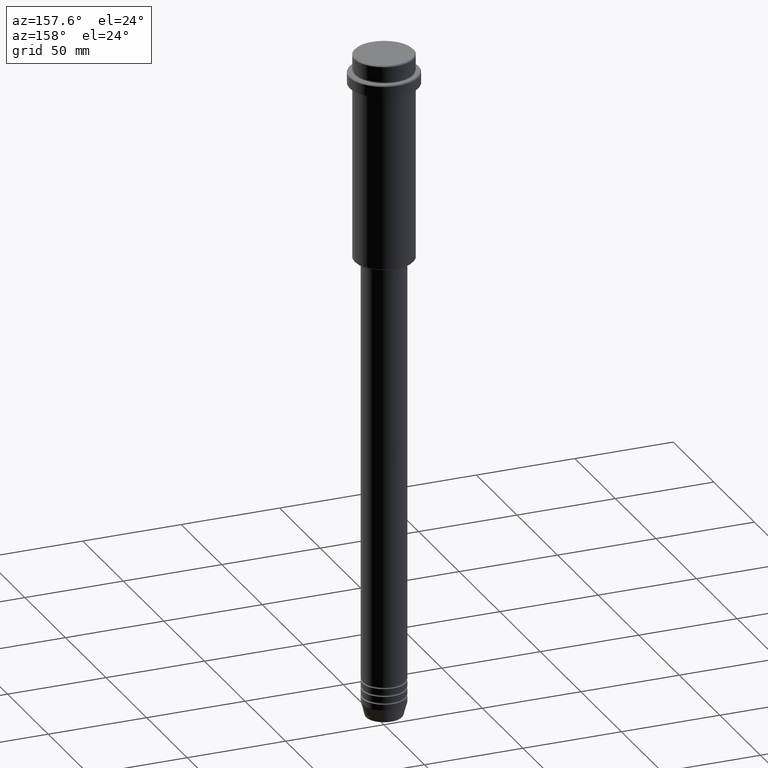
[diagram: clean part render]
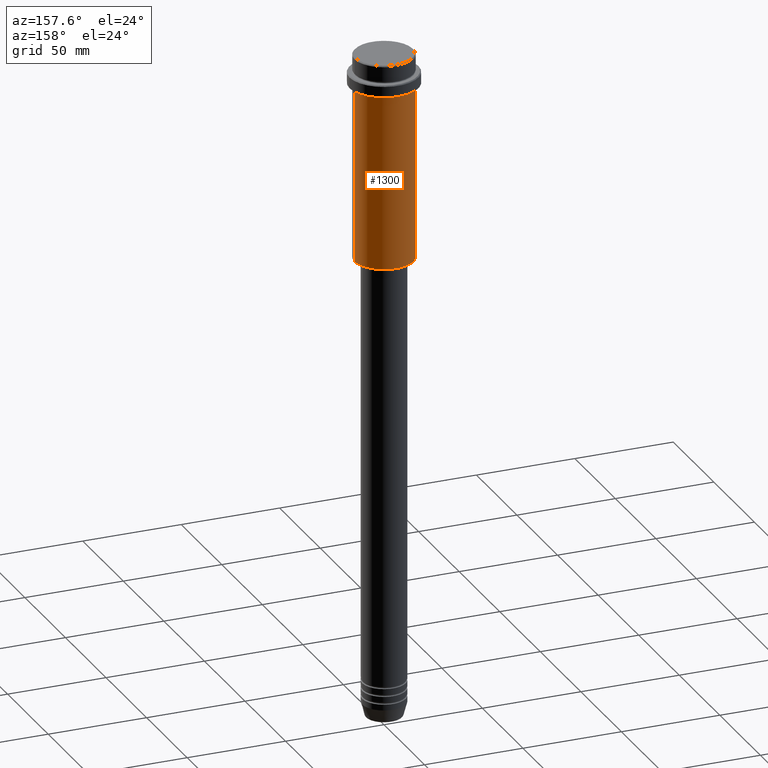
[diagram: same view with one face highlighted and labeled with its STEP entity id]
A machine part, auxiliary view. The second image highlights one B-rep face of the part: STEP entity #1300.
In plain terms, the highlighted cylindrical surface (edge-blend (fillet) strip) has radius 15 mm, axis along (-0, -0, 1).
Its self-contained STEP definition (entity closure, byte-faithful):
#57 = DIRECTION ( 'NONE',  ( -1.000000000000000000, 0.000000000000000000, 0.000000000000000000 ) ) ;
#95 = CARTESIAN_POINT ( 'NONE',  ( 15.00000000000000000, 0.000000000000000000, 0.000000000000000000 ) ) ;
#112 = CIRCLE ( 'NONE', #1023, 15.00000000000000000 ) ;
#156 = CARTESIAN_POINT ( 'NONE',  ( 0.000000000000000000, 0.000000000000000000, -104.5000000000000426 ) ) ;
#203 = EDGE_CURVE ( 'NONE', #430, #379, #112, .T. ) ;
#257 = VECTOR ( 'NONE', #518, 1000.000000000000000 ) ;
#258 = AXIS2_PLACEMENT_3D ( 'NONE', #781, #1239, #469 ) ;
#260 = CARTESIAN_POINT ( 'NONE',  ( -15.00000000000000000, 1.836970198721029589E-15, -104.5000000000000426 ) ) ;
#307 = CARTESIAN_POINT ( 'NONE',  ( -15.00000000000000000, 1.836970198721029589E-15, 0.000000000000000000 ) ) ;
#330 = ORIENTED_EDGE ( 'NONE', *, *, #979, .T. ) ;
#362 = EDGE_CURVE ( 'NONE', #430, #579, #1168, .T. ) ;
#379 = VERTEX_POINT ( 'NONE', #260 ) ;
#430 = VERTEX_POINT ( 'NONE', #985 ) ;
#444 = DIRECTION ( 'NONE',  ( 1.000000000000000000, 0.000000000000000000, 0.000000000000000000 ) ) ;
#459 = FACE_OUTER_BOUND ( 'NONE', #741, .T. ) ;
#462 = EDGE_CURVE ( 'NONE', #579, #706, #869, .T. ) ;
#466 = ORIENTED_EDGE ( 'NONE', *, *, #462, .F. ) ;
#469 = DIRECTION ( 'NONE',  ( 1.000000000000000000, 0.000000000000000000, 0.000000000000000000 ) ) ;
#518 = DIRECTION ( 'NONE',  ( -0.000000000000000000, -0.000000000000000000, 1.000000000000000000 ) ) ;
#558 = DIRECTION ( 'NONE',  ( -0.000000000000000000, -0.000000000000000000, 1.000000000000000000 ) ) ;
#579 = VERTEX_POINT ( 'NONE', #854 ) ;
#596 = DIRECTION ( 'NONE',  ( -0.000000000000000000, -0.000000000000000000, 1.000000000000000000 ) ) ;
#623 = AXIS2_PLACEMENT_3D ( 'NONE', #1321, #558, #444 ) ;
#706 = VERTEX_POINT ( 'NONE', #1193 ) ;
#741 = EDGE_LOOP ( 'NONE', ( #1052, #330, #466, #910 ) ) ;
#781 = CARTESIAN_POINT ( 'NONE',  ( 0.000000000000000000, 0.000000000000000000, 0.000000000000000000 ) ) ;
#854 = CARTESIAN_POINT ( 'NONE',  ( 15.00000000000000178, 0.000000000000000000, -16.00000000000000000 ) ) ;
#869 = CIRCLE ( 'NONE', #623, 15.00000000000000178 ) ;
#910 = ORIENTED_EDGE ( 'NONE', *, *, #362, .F. ) ;
#979 = EDGE_CURVE ( 'NONE', #379, #706, #1162, .T. ) ;
#985 = CARTESIAN_POINT ( 'NONE',  ( 15.00000000000000000, 0.000000000000000000, -104.5000000000000426 ) ) ;
#1023 = AXIS2_PLACEMENT_3D ( 'NONE', #156, #596, #57 ) ;
#1052 = ORIENTED_EDGE ( 'NONE', *, *, #203, .T. ) ;
#1084 = VECTOR ( 'NONE', #1297, 1000.000000000000000 ) ;
#1115 = CYLINDRICAL_SURFACE ( 'NONE', #258, 15.00000000000000000 ) ;
#1162 = LINE ( 'NONE', #307, #257 ) ;
#1168 = LINE ( 'NONE', #95, #1084 ) ;
#1193 = CARTESIAN_POINT ( 'NONE',  ( -15.00000000000000355, 1.836970198721029983E-15, -16.00000000000000000 ) ) ;
#1239 = DIRECTION ( 'NONE',  ( -0.000000000000000000, -0.000000000000000000, 1.000000000000000000 ) ) ;
#1297 = DIRECTION ( 'NONE',  ( -0.000000000000000000, -0.000000000000000000, 1.000000000000000000 ) ) ;
#1300 = ADVANCED_FACE ( 'NONE', ( #459 ), #1115, .T. ) ;
#1321 = CARTESIAN_POINT ( 'NONE',  ( 0.000000000000000000, 0.000000000000000000, -16.00000000000000000 ) ) ;